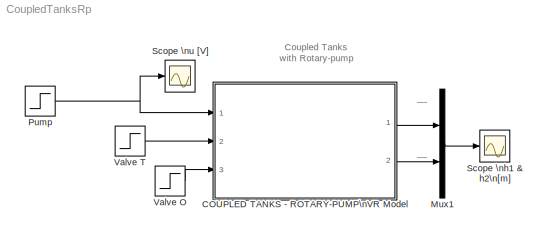
MODEL CoupledTanksRp
KIND model
CONFIG InitFcn = g = 9.81; %gravitational constant\nr = 980; %density of water\n\n%% S-function\n% showVR = 0;\n% h1_init = 0; %initial conditions\n% h2_init = 0; %initial conditions\n
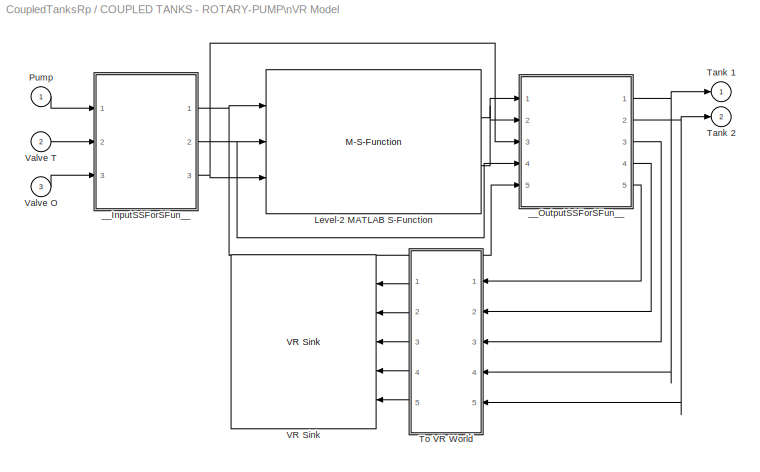
BLOCK [SubSystem] COUPLED TANKS - ROTARY-PUMP\nVR Model
  FunctionWithSeparateData = off
  MaskCallbackString = if strcmp('off',get_param(gcb,'showVR'))\n    vrclose all;\nelse\n    if exist('figureVR')==0\n        figureVR = vrfigure;\n    end  \n    if exist('worldVR')==0\n        worldVR = vrworld('CoupledTanks_VR.WRL');\n    end\n	if isvalid(figureVR)==0\n        open(worldVR);\n        figureVR = vrfigure(worldVR,[650 80 550 350]);\n	end\nend||
  MaskDescription = Coupled Tanks with Rotary Pump - Virtual Reality
  MaskDisplay = image(imread('CoupledTanks_Image.jpg'));\nport_label ('input',1,'u')\nport_label ('input',2,'Valve T')\nport_label ('input',3,'Valve O')\nport_label ('output',1,'h1')\nport_label ('output',2,'h2')
  MaskEnableString = on,on,on
  MaskHelp = Couple Tankswith Rotary Pump - Virtual Reality. <br><br>\n\n\nThis is a model of the Coupled Tanks, which consists of a rotary-pump, two tanks (left and right), inflow and outflow pipes and  transfer and output valves. The left tank is filled with the fluid by the rotary-pump and the fluid drains away to the right tank through the transfer valve and from the right tank drains away through the outp...<+420ch>
  MaskHideContents = off
  MaskIconFrame = on
  MaskIconOpaque = on
  MaskIconRotate = none
  MaskIconUnits = autoscale
  MaskInitialization = clear figureVR worldVR;\nshowVR = 1;
  MaskPortRotate = default
  MaskPromptString = Show VirtualWorld?|Initial fluid level in the tank 1   h1(0)  [cm]|Initial fluid  level in the tank 2   h2 (0) [cm]
  MaskStyleString = checkbox,edit,edit
  MaskToolTipString = on,on,on
  MaskTunableValueString = on,on,on
  MaskType = Coupled Tanks with Rotary Pump
  MaskValueString = off|0|0
  MaskVariables = showVR=@1;h1_0=@2;h2_0=@3;
  MaskVisibilityString = on,on,on
  MinAlgLoopOccurrences = off
  Opaque = off
  Ports = [3, 2]
  PropExecContextOutsideSubsystem = off
  RTWSystemCode = Auto
  RequestExecContextInheritance = off
BLOCK [M-S-Function] COUPLED TANKS - ROTARY-PUMP\nVR Model/Level-2 MATLAB S-Function
  FunctionName = CoupledRotaryTanks
  MaskCallbackString = |
  MaskDisplay = port_label('output', 1, 'Tank 1')\nport_label('output', 2, 'Tank 2')\nport_label('input', 1, 'Pump')\nport_label('input', 2, 'Valve T')\nport_label('input', 3, 'Valve O')
  MaskEnableString = on,on
  MaskIconFrame = on
  MaskIconOpaque = on
  MaskIconRotate = none
  MaskIconUnits = autoscale
  MaskPortRotate = default
  MaskPromptString = h1_0|h2_0
  MaskStyleString = edit,edit
  MaskToolTipString = on,on
  MaskTunableValueString = on,on
  MaskValueString = h1_0|h2_0
  MaskVariables = h1_0=@1;h2_0=@2;
  MaskVisibilityString = on,on
  Parameters = h1_0 h2_0
  Ports = [3, 2]
BLOCK [Inport] COUPLED TANKS - ROTARY-PUMP\nVR Model/Pump
  IconDisplay = Port number
BLOCK [Outport] COUPLED TANKS - ROTARY-PUMP\nVR Model/Tank 1
  DataType = double
  IconDisplay = Port number
  OutDataTypeStr = double
  PortDimensions = 1
  SampleTime = [-1 0]
  SignalType = real
BLOCK [Outport] COUPLED TANKS - ROTARY-PUMP\nVR Model/Tank 2
  DataType = double
  IconDisplay = Port number
  OutDataTypeStr = double
  Port = 2
  PortDimensions = 1
  SampleTime = [-1 0]
  SignalType = real
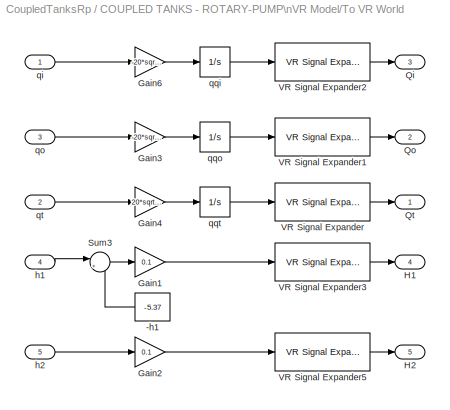
BLOCK [SubSystem] COUPLED TANKS - ROTARY-PUMP\nVR Model/To VR World
  FunctionWithSeparateData = off
  MaskHideContents = off
  MinAlgLoopOccurrences = off
  Opaque = off
  Ports = [5, 5]
  PropExecContextOutsideSubsystem = off
  RTWSystemCode = Auto
  RequestExecContextInheritance = off
BLOCK [Constant] COUPLED TANKS - ROTARY-PUMP\nVR Model/To VR World/-h1
  Value = -5.37
BLOCK [Gain] COUPLED TANKS - ROTARY-PUMP\nVR Model/To VR World/Gain1
  Gain = 0.1
  OutDataTypeMode = Inherit via internal rule
  OutDataTypeStr = Inherit: Inherit via internal rule
  ParamDataTypeStr = Inherit: Inherit via internal rule
  ParameterDataTypeMode = Inherit via internal rule
  SaturateOnIntegerOverflow = off
BLOCK [Gain] COUPLED TANKS - ROTARY-PUMP\nVR Model/To VR World/Gain2
  Gain = 0.1
  OutDataTypeMode = Inherit via internal rule
  OutDataTypeStr = Inherit: Inherit via internal rule
  ParamDataTypeStr = Inherit: Inherit via internal rule
  ParameterDataTypeMode = Inherit via internal rule
  SaturateOnIntegerOverflow = off
BLOCK [Gain] COUPLED TANKS - ROTARY-PUMP\nVR Model/To VR World/Gain3
  Gain = -20*sqrt(2*g)
  OutDataTypeMode = Inherit via internal rule
  OutDataTypeStr = Inherit: Inherit via internal rule
  ParamDataTypeStr = Inherit: Inherit via internal rule
  ParameterDataTypeMode = Inherit via internal rule
  SaturateOnIntegerOverflow = off
BLOCK [Gain] COUPLED TANKS - ROTARY-PUMP\nVR Model/To VR World/Gain4
  Gain = 20*sqrt(2*g)
  OutDataTypeMode = Inherit via internal rule
  OutDataTypeStr = Inherit: Inherit via internal rule
  ParamDataTypeStr = Inherit: Inherit via internal rule
  ParameterDataTypeMode = Inherit via internal rule
  SaturateOnIntegerOverflow = off
BLOCK [Gain] COUPLED TANKS - ROTARY-PUMP\nVR Model/To VR World/Gain6
  Gain = -20*sqrt(2*g)
  OutDataTypeMode = Inherit via internal rule
  OutDataTypeStr = Inherit: Inherit via internal rule
  ParamDataTypeStr = Inherit: Inherit via internal rule
  ParameterDataTypeMode = Inherit via internal rule
  SaturateOnIntegerOverflow = off
BLOCK [Outport] COUPLED TANKS - ROTARY-PUMP\nVR Model/To VR World/H1
  IconDisplay = Port number
  Port = 4
BLOCK [Outport] COUPLED TANKS - ROTARY-PUMP\nVR Model/To VR World/H2
  IconDisplay = Port number
  Port = 5
BLOCK [Outport] COUPLED TANKS - ROTARY-PUMP\nVR Model/To VR World/Qi
  IconDisplay = Port number
  Port = 3
BLOCK [Outport] COUPLED TANKS - ROTARY-PUMP\nVR Model/To VR World/Qo
  IconDisplay = Port number
  Port = 2
BLOCK [Outport] COUPLED TANKS - ROTARY-PUMP\nVR Model/To VR World/Qt
  IconDisplay = Port number
BLOCK [Sum] COUPLED TANKS - ROTARY-PUMP\nVR Model/To VR World/Sum3
  IconShape = round
  InputSameDT = off
  Inputs = |+-
  OutDataTypeMode = Inherit via internal rule
  OutDataTypeStr = Inherit: Inherit via internal rule
  Ports = [2, 1]
  SaturateOnIntegerOverflow = off
BLOCK [Reference] COUPLED TANKS - ROTARY-PUMP\nVR Model/To VR World/VR Signal Expander  REF=vrlib/VR Signal Expander
  Ports = [1, 1]
  SourceBlock = vrlib/VR Signal Expander
  SourceType = VR Signal Expander
  outidx = [4]
  outwidth = 4
BLOCK [Reference] COUPLED TANKS - ROTARY-PUMP\nVR Model/To VR World/VR Signal Expander1  REF=vrlib/VR Signal Expander
  Ports = [1, 1]
  SourceBlock = vrlib/VR Signal Expander
  SourceType = VR Signal Expander
  outidx = [4]
  outwidth = 4
BLOCK [Reference] COUPLED TANKS - ROTARY-PUMP\nVR Model/To VR World/VR Signal Expander2  REF=vrlib/VR Signal Expander
  Ports = [1, 1]
  SourceBlock = vrlib/VR Signal Expander
  SourceType = VR Signal Expander
  outidx = [4]
  outwidth = 4
BLOCK [Reference] COUPLED TANKS - ROTARY-PUMP\nVR Model/To VR World/VR Signal Expander3  REF=vrlib/VR Signal Expander
  Ports = [1, 1]
  SourceBlock = vrlib/VR Signal Expander
  SourceType = VR Signal Expander
  outidx = [2]
  outwidth = 3
BLOCK [Reference] COUPLED TANKS - ROTARY-PUMP\nVR Model/To VR World/VR Signal Expander5  REF=vrlib/VR Signal Expander
  Ports = [1, 1]
  SourceBlock = vrlib/VR Signal Expander
  SourceType = VR Signal Expander
  outidx = [2]
  outwidth = 3
BLOCK [Inport] COUPLED TANKS - ROTARY-PUMP\nVR Model/To VR World/h1
  IconDisplay = Port number
  Port = 4
BLOCK [Inport] COUPLED TANKS - ROTARY-PUMP\nVR Model/To VR World/h2
  IconDisplay = Port number
  Port = 5
BLOCK [Inport] COUPLED TANKS - ROTARY-PUMP\nVR Model/To VR World/qi
  IconDisplay = Port number
BLOCK [Inport] COUPLED TANKS - ROTARY-PUMP\nVR Model/To VR World/qo
  IconDisplay = Port number
  Port = 3
BLOCK [Integrator] COUPLED TANKS - ROTARY-PUMP\nVR Model/To VR World/qqi
  Ports = [1, 1]
BLOCK [Integrator] COUPLED TANKS - ROTARY-PUMP\nVR Model/To VR World/qqo
  Ports = [1, 1]
BLOCK [Integrator] COUPLED TANKS - ROTARY-PUMP\nVR Model/To VR World/qqt
  Ports = [1, 1]
BLOCK [Inport] COUPLED TANKS - ROTARY-PUMP\nVR Model/To VR World/qt
  IconDisplay = Port number
  Port = 2
BLOCK [Reference] COUPLED TANKS - ROTARY-PUMP\nVR Model/VR Sink  REF=vrlib/VR Sink
  AutoView = off
  FieldsWritten = pumpOut.rotation.4.1.double#pumpOut2.rotation.4.1.double#pump.rotation.4.1.double#water1.scale.3.1.double#water2.scale.3.1.double
  InstantiateOnLoad = on
  Ports = [5]
  RemoteChange = off
  RemoteView = on
  SampleTime = 0.1
  SourceBlock = vrlib/VR Sink
  SourceType = Virtual Reality Sink
  VideoDimensions = []
  ViewEnable = on
  WorldFileName = CoupledTanks_VR.WRL
BLOCK [Inport] COUPLED TANKS - ROTARY-PUMP\nVR Model/Valve O
  IconDisplay = Port number
  Port = 3
BLOCK [Inport] COUPLED TANKS - ROTARY-PUMP\nVR Model/Valve T
  IconDisplay = Port number
  Port = 2
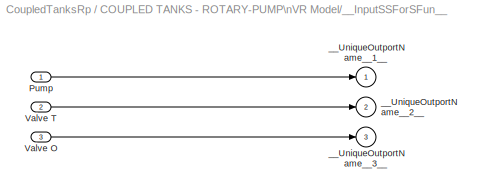
BLOCK [SubSystem] COUPLED TANKS - ROTARY-PUMP\nVR Model/__InputSSForSFun__
  FunctionWithSeparateData = off
  MaskHideContents = off
  MinAlgLoopOccurrences = off
  Opaque = off
  PermitHierarchicalResolution = ParametersOnly
  Ports = [3, 3]
  PropExecContextOutsideSubsystem = off
  RTWSystemCode = Auto
  RequestExecContextInheritance = off
BLOCK [Inport] COUPLED TANKS - ROTARY-PUMP\nVR Model/__InputSSForSFun__/Pump
  IconDisplay = Port number
BLOCK [Inport] COUPLED TANKS - ROTARY-PUMP\nVR Model/__InputSSForSFun__/Valve O
  IconDisplay = Port number
  Port = 3
BLOCK [Inport] COUPLED TANKS - ROTARY-PUMP\nVR Model/__InputSSForSFun__/Valve T
  IconDisplay = Port number
  Port = 2
BLOCK [Outport] COUPLED TANKS - ROTARY-PUMP\nVR Model/__InputSSForSFun__/__UniqueOutportName__1__
  IconDisplay = Port number
BLOCK [Outport] COUPLED TANKS - ROTARY-PUMP\nVR Model/__InputSSForSFun__/__UniqueOutportName__2__
  IconDisplay = Port number
  Port = 2
BLOCK [Outport] COUPLED TANKS - ROTARY-PUMP\nVR Model/__InputSSForSFun__/__UniqueOutportName__3__
  IconDisplay = Port number
  Port = 3
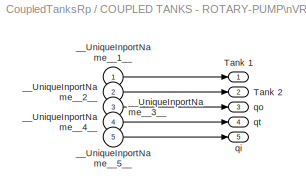
BLOCK [SubSystem] COUPLED TANKS - ROTARY-PUMP\nVR Model/__OutputSSForSFun__
  FunctionWithSeparateData = off
  MaskHideContents = off
  MinAlgLoopOccurrences = off
  Opaque = off
  PermitHierarchicalResolution = ParametersOnly
  Ports = [5, 5]
  PropExecContextOutsideSubsystem = off
  RTWSystemCode = Auto
  RequestExecContextInheritance = off
BLOCK [Outport] COUPLED TANKS - ROTARY-PUMP\nVR Model/__OutputSSForSFun__/Tank 1
  DataType = double
  IconDisplay = Port number
  OutDataTypeStr = double
  PortDimensions = 1
  SampleTime = [-1 0]
  SignalType = real
BLOCK [Outport] COUPLED TANKS - ROTARY-PUMP\nVR Model/__OutputSSForSFun__/Tank 2
  DataType = double
  IconDisplay = Port number
  OutDataTypeStr = double
  Port = 2
  PortDimensions = 1
  SampleTime = [-1 0]
  SignalType = real
BLOCK [Inport] COUPLED TANKS - ROTARY-PUMP\nVR Model/__OutputSSForSFun__/__UniqueInportName__1__
  IconDisplay = Port number
BLOCK [Inport] COUPLED TANKS - ROTARY-PUMP\nVR Model/__OutputSSForSFun__/__UniqueInportName__2__
  IconDisplay = Port number
  Port = 2
BLOCK [Inport] COUPLED TANKS - ROTARY-PUMP\nVR Model/__OutputSSForSFun__/__UniqueInportName__3__
  IconDisplay = Port number
  Port = 3
BLOCK [Inport] COUPLED TANKS - ROTARY-PUMP\nVR Model/__OutputSSForSFun__/__UniqueInportName__4__
  IconDisplay = Port number
  Port = 4
BLOCK [Inport] COUPLED TANKS - ROTARY-PUMP\nVR Model/__OutputSSForSFun__/__UniqueInportName__5__
  IconDisplay = Port number
  Port = 5
BLOCK [Outport] COUPLED TANKS - ROTARY-PUMP\nVR Model/__OutputSSForSFun__/qi
  DataType = double
  IconDisplay = Port number
  OutDataTypeStr = double
  Port = 5
  PortDimensions = 1
  SampleTime = [-1 0]
  SignalType = real
BLOCK [Outport] COUPLED TANKS - ROTARY-PUMP\nVR Model/__OutputSSForSFun__/qo
  DataType = double
  IconDisplay = Port number
  OutDataTypeStr = double
  Port = 3
  PortDimensions = 1
  SampleTime = [-1 0]
  SignalType = real
BLOCK [Outport] COUPLED TANKS - ROTARY-PUMP\nVR Model/__OutputSSForSFun__/qt
  DataType = double
  IconDisplay = Port number
  OutDataTypeStr = double
  Port = 4
  PortDimensions = 1
  SampleTime = [-1 0]
  SignalType = real
BLOCK [Mux] Mux1
  DisplayOption = bar
  Inputs = 2
  Ports = [2, 1]
BLOCK [Step] Pump
  After = 10
  SampleTime = 0
  Time = 0
BLOCK [Scope] Scope \nh1 & h2\n[m]
  Floating = off
  MaxDataPoints = 5000000
  NumInputPorts = 1
  Ports = [1]
  SampleTime = 0
  SaveName = ty
  SaveToWorkspace = on
  TimeRange = 60
  YMax = 0.7
  YMin = 2.77556e-17
BLOCK [Scope] Scope \nu [V]
  Floating = off
  MaxDataPoints = 5000000
  NumInputPorts = 1
  Ports = [1]
  SampleTime = 0
  SaveName = tu
  SaveToWorkspace = on
  TimeRange = 600
  YMax = 7
  YMin = 0
BLOCK [Step] Valve O
  After = 0.1
  SampleTime = 0
  Time = 0
BLOCK [Step] Valve T
  After = 0.1
  SampleTime = 0
  Time = 0
ANNOTATION (root): Coupled Tanks \nwith Rotary-pump
ANNOTATION (root): __
LINE COUPLED TANKS - ROTARY-PUMP\nVR Model/Level-2 MATLAB S-Function:1 -> COUPLED TANKS - ROTARY-PUMP\nVR Model/__OutputSSForSFun__:1
LINE COUPLED TANKS - ROTARY-PUMP\nVR Model/Level-2 MATLAB S-Function:2 -> COUPLED TANKS - ROTARY-PUMP\nVR Model/__OutputSSForSFun__:2
LINE COUPLED TANKS - ROTARY-PUMP\nVR Model/Pump:1 -> COUPLED TANKS - ROTARY-PUMP\nVR Model/__InputSSForSFun__:1
LINE COUPLED TANKS - ROTARY-PUMP\nVR Model/To VR World/-h1:1 -> COUPLED TANKS - ROTARY-PUMP\nVR Model/To VR World/Sum3:2
LINE COUPLED TANKS - ROTARY-PUMP\nVR Model/To VR World/Gain1:1 -> COUPLED TANKS - ROTARY-PUMP\nVR Model/To VR World/VR Signal Expander3:1
LINE COUPLED TANKS - ROTARY-PUMP\nVR Model/To VR World/Gain2:1 -> COUPLED TANKS - ROTARY-PUMP\nVR Model/To VR World/VR Signal Expander5:1
LINE COUPLED TANKS - ROTARY-PUMP\nVR Model/To VR World/Gain3:1 -> COUPLED TANKS - ROTARY-PUMP\nVR Model/To VR World/qqo:1
LINE COUPLED TANKS - ROTARY-PUMP\nVR Model/To VR World/Gain4:1 -> COUPLED TANKS - ROTARY-PUMP\nVR Model/To VR World/qqt:1
LINE COUPLED TANKS - ROTARY-PUMP\nVR Model/To VR World/Gain6:1 -> COUPLED TANKS - ROTARY-PUMP\nVR Model/To VR World/qqi:1
LINE COUPLED TANKS - ROTARY-PUMP\nVR Model/To VR World/Sum3:1 -> COUPLED TANKS - ROTARY-PUMP\nVR Model/To VR World/Gain1:1
LINE COUPLED TANKS - ROTARY-PUMP\nVR Model/To VR World/VR Signal Expander1:1 -> COUPLED TANKS - ROTARY-PUMP\nVR Model/To VR World/Qo:1
LINE COUPLED TANKS - ROTARY-PUMP\nVR Model/To VR World/VR Signal Expander2:1 -> COUPLED TANKS - ROTARY-PUMP\nVR Model/To VR World/Qi:1
LINE COUPLED TANKS - ROTARY-PUMP\nVR Model/To VR World/VR Signal Expander3:1 -> COUPLED TANKS - ROTARY-PUMP\nVR Model/To VR World/H1:1
LINE COUPLED TANKS - ROTARY-PUMP\nVR Model/To VR World/VR Signal Expander5:1 -> COUPLED TANKS - ROTARY-PUMP\nVR Model/To VR World/H2:1
LINE COUPLED TANKS - ROTARY-PUMP\nVR Model/To VR World/VR Signal Expander:1 -> COUPLED TANKS - ROTARY-PUMP\nVR Model/To VR World/Qt:1
LINE COUPLED TANKS - ROTARY-PUMP\nVR Model/To VR World/h1:1 -> COUPLED TANKS - ROTARY-PUMP\nVR Model/To VR World/Sum3:1
LINE COUPLED TANKS - ROTARY-PUMP\nVR Model/To VR World/h2:1 -> COUPLED TANKS - ROTARY-PUMP\nVR Model/To VR World/Gain2:1
LINE COUPLED TANKS - ROTARY-PUMP\nVR Model/To VR World/qi:1 -> COUPLED TANKS - ROTARY-PUMP\nVR Model/To VR World/Gain6:1
LINE COUPLED TANKS - ROTARY-PUMP\nVR Model/To VR World/qo:1 -> COUPLED TANKS - ROTARY-PUMP\nVR Model/To VR World/Gain3:1
LINE COUPLED TANKS - ROTARY-PUMP\nVR Model/To VR World/qqi:1 -> COUPLED TANKS - ROTARY-PUMP\nVR Model/To VR World/VR Signal Expander2:1
LINE COUPLED TANKS - ROTARY-PUMP\nVR Model/To VR World/qqo:1 -> COUPLED TANKS - ROTARY-PUMP\nVR Model/To VR World/VR Signal Expander1:1
LINE COUPLED TANKS - ROTARY-PUMP\nVR Model/To VR World/qqt:1 -> COUPLED TANKS - ROTARY-PUMP\nVR Model/To VR World/VR Signal Expander:1
LINE COUPLED TANKS - ROTARY-PUMP\nVR Model/To VR World/qt:1 -> COUPLED TANKS - ROTARY-PUMP\nVR Model/To VR World/Gain4:1
LINE COUPLED TANKS - ROTARY-PUMP\nVR Model/To VR World:1 -> COUPLED TANKS - ROTARY-PUMP\nVR Model/VR Sink:1
LINE COUPLED TANKS - ROTARY-PUMP\nVR Model/To VR World:2 -> COUPLED TANKS - ROTARY-PUMP\nVR Model/VR Sink:2
LINE COUPLED TANKS - ROTARY-PUMP\nVR Model/To VR World:3 -> COUPLED TANKS - ROTARY-PUMP\nVR Model/VR Sink:3
LINE COUPLED TANKS - ROTARY-PUMP\nVR Model/To VR World:4 -> COUPLED TANKS - ROTARY-PUMP\nVR Model/VR Sink:4
LINE COUPLED TANKS - ROTARY-PUMP\nVR Model/To VR World:5 -> COUPLED TANKS - ROTARY-PUMP\nVR Model/VR Sink:5
LINE COUPLED TANKS - ROTARY-PUMP\nVR Model/Valve O:1 -> COUPLED TANKS - ROTARY-PUMP\nVR Model/__InputSSForSFun__:3
LINE COUPLED TANKS - ROTARY-PUMP\nVR Model/Valve T:1 -> COUPLED TANKS - ROTARY-PUMP\nVR Model/__InputSSForSFun__:2
LINE COUPLED TANKS - ROTARY-PUMP\nVR Model/__InputSSForSFun__/Pump:1 -> COUPLED TANKS - ROTARY-PUMP\nVR Model/__InputSSForSFun__/__UniqueOutportName__1__:1
LINE COUPLED TANKS - ROTARY-PUMP\nVR Model/__InputSSForSFun__/Valve O:1 -> COUPLED TANKS - ROTARY-PUMP\nVR Model/__InputSSForSFun__/__UniqueOutportName__3__:1
LINE COUPLED TANKS - ROTARY-PUMP\nVR Model/__InputSSForSFun__/Valve T:1 -> COUPLED TANKS - ROTARY-PUMP\nVR Model/__InputSSForSFun__/__UniqueOutportName__2__:1
NET COUPLED TANKS - ROTARY-PUMP\nVR Model/__InputSSForSFun__:1 -> COUPLED TANKS - ROTARY-PUMP\nVR Model/Level-2 MATLAB S-Function:1, COUPLED TANKS - ROTARY-PUMP\nVR Model/__OutputSSForSFun__:5
NET COUPLED TANKS - ROTARY-PUMP\nVR Model/__InputSSForSFun__:2 -> COUPLED TANKS - ROTARY-PUMP\nVR Model/Level-2 MATLAB S-Function:2, COUPLED TANKS - ROTARY-PUMP\nVR Model/__OutputSSForSFun__:4
NET COUPLED TANKS - ROTARY-PUMP\nVR Model/__InputSSForSFun__:3 -> COUPLED TANKS - ROTARY-PUMP\nVR Model/Level-2 MATLAB S-Function:3, COUPLED TANKS - ROTARY-PUMP\nVR Model/__OutputSSForSFun__:3
LINE COUPLED TANKS - ROTARY-PUMP\nVR Model/__OutputSSForSFun__/__UniqueInportName__1__:1 -> COUPLED TANKS - ROTARY-PUMP\nVR Model/__OutputSSForSFun__/Tank 1:1
LINE COUPLED TANKS - ROTARY-PUMP\nVR Model/__OutputSSForSFun__/__UniqueInportName__2__:1 -> COUPLED TANKS - ROTARY-PUMP\nVR Model/__OutputSSForSFun__/Tank 2:1
LINE COUPLED TANKS - ROTARY-PUMP\nVR Model/__OutputSSForSFun__/__UniqueInportName__3__:1 -> COUPLED TANKS - ROTARY-PUMP\nVR Model/__OutputSSForSFun__/qo:1
LINE COUPLED TANKS - ROTARY-PUMP\nVR Model/__OutputSSForSFun__/__UniqueInportName__4__:1 -> COUPLED TANKS - ROTARY-PUMP\nVR Model/__OutputSSForSFun__/qt:1
LINE COUPLED TANKS - ROTARY-PUMP\nVR Model/__OutputSSForSFun__/__UniqueInportName__5__:1 -> COUPLED TANKS - ROTARY-PUMP\nVR Model/__OutputSSForSFun__/qi:1
NET COUPLED TANKS - ROTARY-PUMP\nVR Model/__OutputSSForSFun__:1 -> COUPLED TANKS - ROTARY-PUMP\nVR Model/Tank 1:1, COUPLED TANKS - ROTARY-PUMP\nVR Model/To VR World:4
NET COUPLED TANKS - ROTARY-PUMP\nVR Model/__OutputSSForSFun__:2 -> COUPLED TANKS - ROTARY-PUMP\nVR Model/Tank 2:1, COUPLED TANKS - ROTARY-PUMP\nVR Model/To VR World:5
LINE COUPLED TANKS - ROTARY-PUMP\nVR Model/__OutputSSForSFun__:3 -> COUPLED TANKS - ROTARY-PUMP\nVR Model/To VR World:3
LINE COUPLED TANKS - ROTARY-PUMP\nVR Model/__OutputSSForSFun__:4 -> COUPLED TANKS - ROTARY-PUMP\nVR Model/To VR World:2
LINE COUPLED TANKS - ROTARY-PUMP\nVR Model/__OutputSSForSFun__:5 -> COUPLED TANKS - ROTARY-PUMP\nVR Model/To VR World:1
LINE COUPLED TANKS - ROTARY-PUMP\nVR Model:1 -> Mux1:1
LINE COUPLED TANKS - ROTARY-PUMP\nVR Model:2 -> Mux1:2
LINE Mux1:1 -> Scope \nh1 & h2\n[m]:1
NET Pump:1 -> COUPLED TANKS - ROTARY-PUMP\nVR Model:1, Scope \nu [V]:1
LINE Valve O:1 -> COUPLED TANKS - ROTARY-PUMP\nVR Model:3
LINE Valve T:1 -> COUPLED TANKS - ROTARY-PUMP\nVR Model:2
note: NET lines group one-source signal fan-out (src -> all destinations, sorted); 1:1 wires keep LINE
